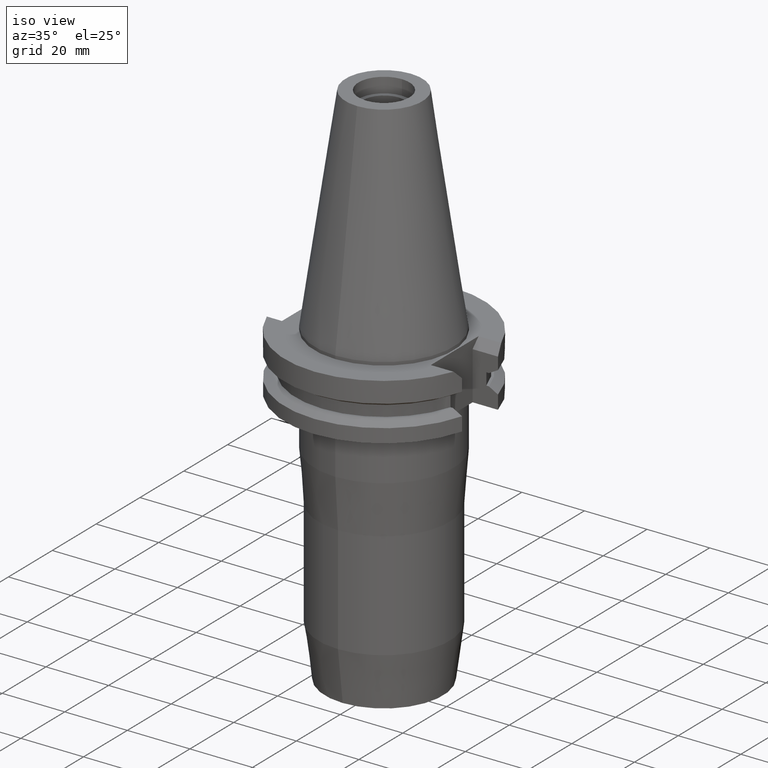
[diagram: clean part render]
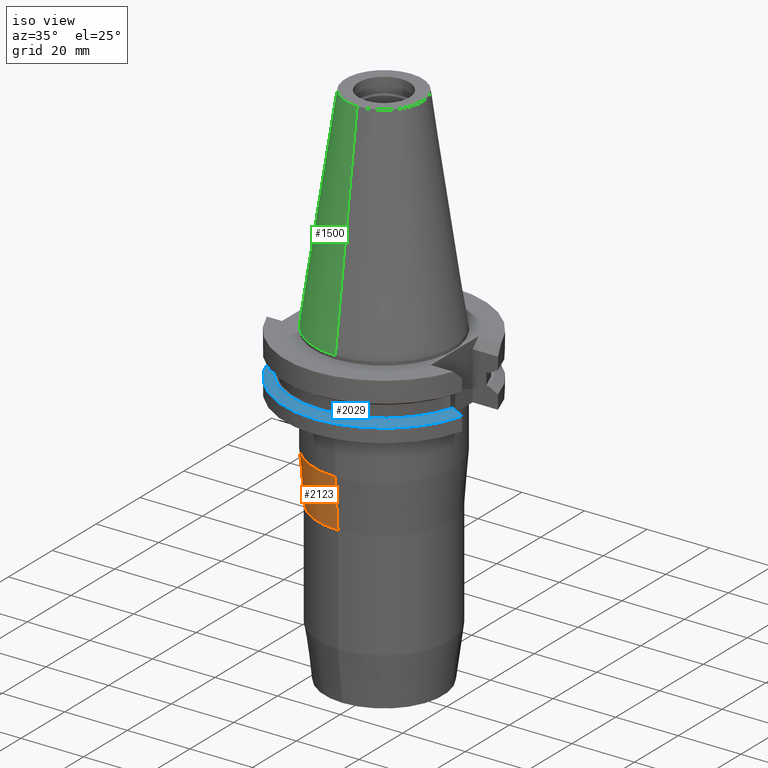
[diagram: same view with three faces highlighted in distinct colors, each labeled with its STEP entity id]
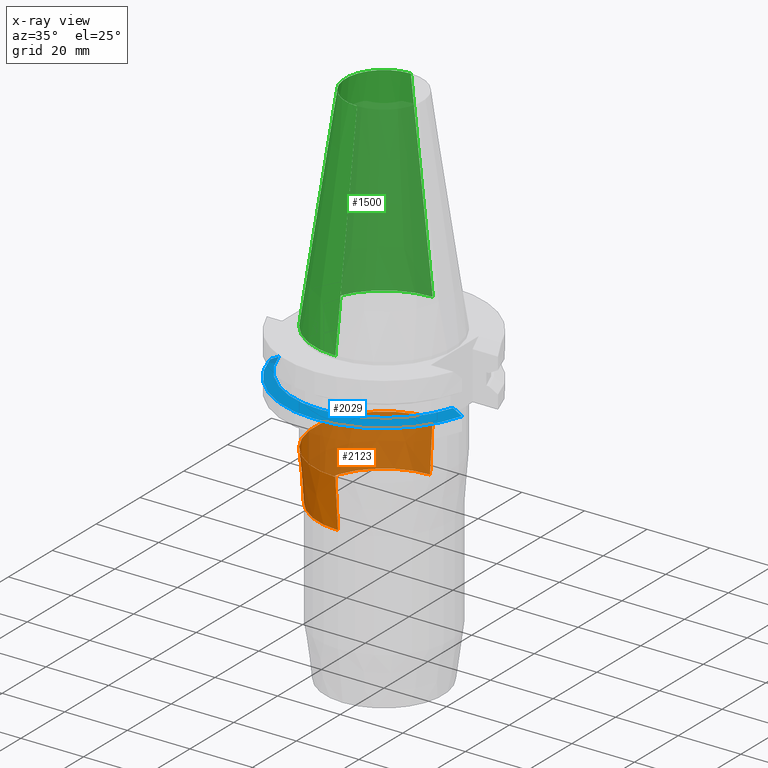
[diagram: x-ray of the same camera — body ghosted, the three highlighted faces saturated]
A machine part, iso view with three faces highlighted in distinct colors.
The next image is the same camera in x-ray (body ghosted, the three faces saturated) — at least one of them is partly hidden behind the body in this view.
Their STEP definitions:

[orange] entity #2123 — the highlighted conical surface has half-angle 4.412 deg.
#862=DIRECTION('',(0.E0,-7.692784868276E-2,-9.970366623635E-1));
#863=VECTOR('',#862,1.592401218773E1);
#864=CARTESIAN_POINT('',(0.E0,2.2225E1,-3.5E1));
#865=LINE('',#864,#863);
#885=CARTESIAN_POINT('',(0.E0,0.E0,-3.5E1));
#886=DIRECTION('',(0.E0,0.E0,1.E0));
#887=DIRECTION('',(0.E0,1.E0,0.E0));
#888=AXIS2_PLACEMENT_3D('',#885,#886,#887);
#893=DIRECTION('',(0.E0,7.692784868276E-2,-9.970366623635E-1));
#894=VECTOR('',#893,1.592401218773E1);
#895=CARTESIAN_POINT('',(0.E0,-2.2225E1,-3.5E1));
#896=LINE('',#895,#894);
#900=CARTESIAN_POINT('',(0.E0,0.E0,-5.087682396309E1));
#901=DIRECTION('',(0.E0,0.E0,-1.E0));
#902=DIRECTION('',(0.E0,-1.E0,0.E0));
#903=AXIS2_PLACEMENT_3D('',#900,#901,#902);
#1322=CARTESIAN_POINT('',(0.E0,2.1E1,-5.087682396309E1));
#1323=VERTEX_POINT('',#1322);
#1324=CARTESIAN_POINT('',(0.E0,-2.1E1,-5.087682396309E1));
#1325=VERTEX_POINT('',#1324);
#1326=CARTESIAN_POINT('',(0.E0,2.2225E1,-3.5E1));
#1327=VERTEX_POINT('',#1326);
#1328=CARTESIAN_POINT('',(0.E0,-2.2225E1,-3.5E1));
#1329=VERTEX_POINT('',#1328);
#2111=CARTESIAN_POINT('',(0.E0,0.E0,-4.293841198155E1));
#2112=DIRECTION('',(0.E0,0.E0,1.E0));
#2113=DIRECTION('',(0.E0,1.E0,0.E0));
#2114=AXIS2_PLACEMENT_3D('',#2111,#2112,#2113);
#2115=CONICAL_SURFACE('',#2114,2.16125E1,4.412E0);
#2116=ORIENTED_EDGE('',*,*,#2101,.F.);
#2117=ORIENTED_EDGE('',*,*,#2078,.T.);
#2118=ORIENTED_EDGE('',*,*,#2105,.T.);
#2120=ORIENTED_EDGE('',*,*,#2119,.T.);
#2121=EDGE_LOOP('',(#2116,#2117,#2118,#2120));
#2122=FACE_OUTER_BOUND('',#2121,.F.);
#889=CIRCLE('',#888,2.2225E1);
#904=CIRCLE('',#903,2.1E1);
#2078=EDGE_CURVE('',#1327,#1329,#889,.T.);
#2101=EDGE_CURVE('',#1327,#1323,#865,.T.);
#2105=EDGE_CURVE('',#1329,#1325,#896,.T.);
#2119=EDGE_CURVE('',#1325,#1323,#904,.T.);
#2123=ADVANCED_FACE('',(#2122),#2115,.T.);

[blue] entity #2029 — the highlighted conical surface has half-angle 60 deg.
#750=CARTESIAN_POINT('',(0.E0,1.055026073065E-14,-1.30475E1));
#751=DIRECTION('',(0.E0,0.E0,-1.E0));
#752=DIRECTION('',(9.592008904640E-1,-2.827253998727E-1,0.E0));
#753=AXIS2_PLACEMENT_3D('',#750,#751,#752);
#758=CARTESIAN_POINT('',(0.E0,1.055026073065E-14,-1.30475E1));
#759=DIRECTION('',(0.E0,0.E0,-1.E0));
#760=DIRECTION('',(0.E0,-1.E0,0.E0));
#761=AXIS2_PLACEMENT_3D('',#758,#759,#760);
#782=CARTESIAN_POINT('',(2.778616453829E1,-8.190000190936E0,-1.30475E1));
#783=CARTESIAN_POINT('',(2.809970667762E1,-8.190000190936E0,-1.322113803423E1));
#784=CARTESIAN_POINT('',(2.873177376142E1,-8.189999991752E0,-1.357164158033E1));
#785=CARTESIAN_POINT('',(2.969487560252E1,-8.189999742465E0,-1.410705121334E1));
#786=CARTESIAN_POINT('',(3.034695039277E1,-8.190000606415E0,-1.447040268728E1));
#787=CARTESIAN_POINT('',(3.067550146399E1,-8.190000606415E0,-1.465367218811E1));
#792=CARTESIAN_POINT('',(0.E0,1.055026073065E-14,-1.465366676908E1));
#793=DIRECTION('',(0.E0,0.E0,-1.E0));
#794=DIRECTION('',(9.661575315241E-1,-2.579527559055E-1,0.E0));
#795=AXIS2_PLACEMENT_3D('',#792,#793,#794);
#800=CARTESIAN_POINT('',(0.E0,1.055026073065E-14,-1.465366676908E1));
#801=DIRECTION('',(0.E0,0.E0,-1.E0));
#802=DIRECTION('',(0.E0,-1.E0,0.E0));
#803=AXIS2_PLACEMENT_3D('',#800,#801,#802);
#808=CARTESIAN_POINT('',(-3.067550165946E1,-8.189999874273E0,
-1.465366564557E1));
#809=CARTESIAN_POINT('',(-3.034695650182E1,-8.189999874273E0,
-1.447039943989E1));
#810=CARTESIAN_POINT('',(-2.969487720193E1,-8.189999973374E0,
-1.410705476597E1));
#811=CARTESIAN_POINT('',(-2.873177890462E1,-8.190000281781E0,
-1.357164727379E1));
#812=CARTESIAN_POINT('',(-2.809970683724E1,-8.189999360262E0,
-1.322113120020E1));
#813=CARTESIAN_POINT('',(-2.778617704657E1,-8.189999360262E0,-1.30475E1));
#1362=CARTESIAN_POINT('',(3.067550146399E1,-8.190000606415E0,
-1.465367218811E1));
#1363=VERTEX_POINT('',#1362);
#1364=VERTEX_POINT('',#782);
#1374=CARTESIAN_POINT('',(-3.067550165946E1,-8.189999874273E0,
-1.465366564557E1));
#1375=VERTEX_POINT('',#1374);
#1376=CARTESIAN_POINT('',(0.E0,-3.175E1,-1.465366676908E1));
#1377=VERTEX_POINT('',#1376);
#1395=CARTESIAN_POINT('',(-2.778617704657E1,-8.189999360262E0,-1.30475E1));
#1396=VERTEX_POINT('',#1395);
#1417=CARTESIAN_POINT('',(3.537899182731E-14,-2.896803755053E1,-1.30475E1));
#1418=VERTEX_POINT('',#1417);
#2016=CARTESIAN_POINT('',(0.E0,1.055026073065E-14,-1.385058338454E1));
#2017=DIRECTION('',(0.E0,0.E0,-1.E0));
#2018=DIRECTION('',(0.E0,-1.E0,0.E0));
#2019=AXIS2_PLACEMENT_3D('',#2016,#2017,#2018);
#2020=CONICAL_SURFACE('',#2019,3.035901877527E1,6.E1);
#2021=ORIENTED_EDGE('',*,*,#1896,.T.);
#2022=ORIENTED_EDGE('',*,*,#1924,.T.);
#2023=ORIENTED_EDGE('',*,*,#1922,.T.);
#2024=ORIENTED_EDGE('',*,*,#1946,.T.);
#2025=ORIENTED_EDGE('',*,*,#2008,.F.);
#2026=ORIENTED_EDGE('',*,*,#2006,.F.);
#2027=EDGE_LOOP('',(#2021,#2022,#2023,#2024,#2025,#2026));
#2028=FACE_OUTER_BOUND('',#2027,.F.);
#754=CIRCLE('',#753,2.896803755053E1);
#762=CIRCLE('',#761,2.896803755053E1);
#788=B_SPLINE_CURVE_WITH_KNOTS('',3,(#782,#783,#784,#785,#786,#787),
.UNSPECIFIED.,.F.,.F.,(4,1,1,4),(0.E0,3.333333333333E-1,6.666666666667E-1,1.E0),
.UNSPECIFIED.);
#796=CIRCLE('',#795,3.175E1);
#804=CIRCLE('',#803,3.175E1);
#814=B_SPLINE_CURVE_WITH_KNOTS('',3,(#808,#809,#810,#811,#812,#813),
.UNSPECIFIED.,.F.,.F.,(4,1,1,4),(0.E0,3.333333333333E-1,6.666666666667E-1,1.E0),
.UNSPECIFIED.);
#1896=EDGE_CURVE('',#1364,#1363,#788,.T.);
#1922=EDGE_CURVE('',#1377,#1375,#804,.T.);
#1924=EDGE_CURVE('',#1363,#1377,#796,.T.);
#1946=EDGE_CURVE('',#1375,#1396,#814,.T.);
#2006=EDGE_CURVE('',#1364,#1418,#754,.T.);
#2008=EDGE_CURVE('',#1418,#1396,#762,.T.);
#2029=ADVANCED_FACE('',(#2028),#2020,.T.);

[green] entity #1500 — the highlighted conical surface has half-angle 8.297 deg.
#17=CARTESIAN_POINT('',(0.E0,1.642557519356E-14,6.825E1));
#18=DIRECTION('',(0.E0,0.E0,-1.E0));
#19=DIRECTION('',(0.E0,-1.E0,0.E0));
#20=AXIS2_PLACEMENT_3D('',#17,#18,#19);
#50=DIRECTION('',(0.E0,-1.443069799457E-1,-9.895329683942E-1));
#51=VECTOR('',#50,6.897193138573E1);
#52=CARTESIAN_POINT('',(0.E0,-1.227186888070E1,6.825E1));
#53=LINE('',#52,#51);
#57=CARTESIAN_POINT('',(0.E0,1.642557519356E-14,-3.126388037344E-13));
#58=DIRECTION('',(0.E0,0.E0,-1.E0));
#59=DIRECTION('',(0.E0,-1.E0,0.E0));
#60=AXIS2_PLACEMENT_3D('',#57,#58,#59);
#65=DIRECTION('',(0.E0,1.443069799457E-1,-9.895329683942E-1));
#66=VECTOR('',#65,6.897193138573E1);
#67=CARTESIAN_POINT('',(0.E0,1.227186888070E1,6.825E1));
#68=LINE('',#67,#66);
#1258=CARTESIAN_POINT('',(0.E0,-1.227186888070E1,6.825E1));
#1259=CARTESIAN_POINT('',(0.E0,1.227186888070E1,6.825E1));
#1260=VERTEX_POINT('',#1258);
#1261=VERTEX_POINT('',#1259);
#1460=CARTESIAN_POINT('',(0.E0,2.2225E1,-2.131628207280E-13));
#1461=VERTEX_POINT('',#1460);
#1462=CARTESIAN_POINT('',(0.E0,-2.2225E1,-2.131628207280E-13));
#1463=VERTEX_POINT('',#1462);
#1486=CARTESIAN_POINT('',(0.E0,1.642557519356E-14,3.4125E1));
#1487=DIRECTION('',(0.E0,0.E0,-1.E0));
#1488=DIRECTION('',(0.E0,-1.E0,0.E0));
#1489=AXIS2_PLACEMENT_3D('',#1486,#1487,#1488);
#1490=CONICAL_SURFACE('',#1489,1.724843444035E1,8.29715E0);
#1492=ORIENTED_EDGE('',*,*,#1491,.F.);
#1493=ORIENTED_EDGE('',*,*,#1473,.F.);
#1495=ORIENTED_EDGE('',*,*,#1494,.T.);
#1497=ORIENTED_EDGE('',*,*,#1496,.T.);
#1498=EDGE_LOOP('',(#1492,#1493,#1495,#1497));
#1499=FACE_OUTER_BOUND('',#1498,.F.);
#21=CIRCLE('',#20,1.227186888070E1);
#61=CIRCLE('',#60,2.2225E1);
#1473=EDGE_CURVE('',#1260,#1261,#21,.T.);
#1491=EDGE_CURVE('',#1261,#1461,#68,.T.);
#1494=EDGE_CURVE('',#1260,#1463,#53,.T.);
#1496=EDGE_CURVE('',#1463,#1461,#61,.T.);
#1500=ADVANCED_FACE('',(#1499),#1490,.T.);